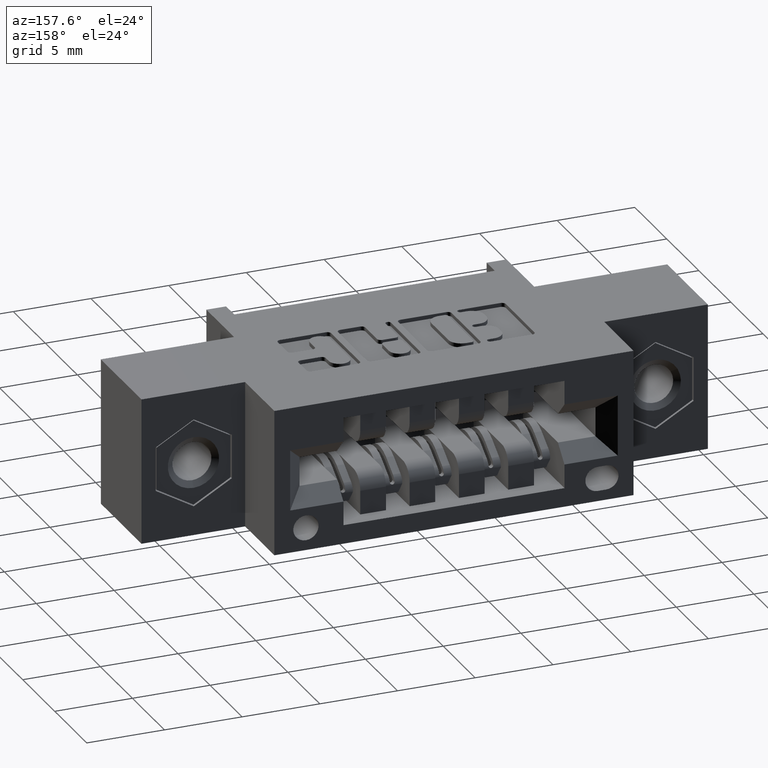
[diagram: clean part render]
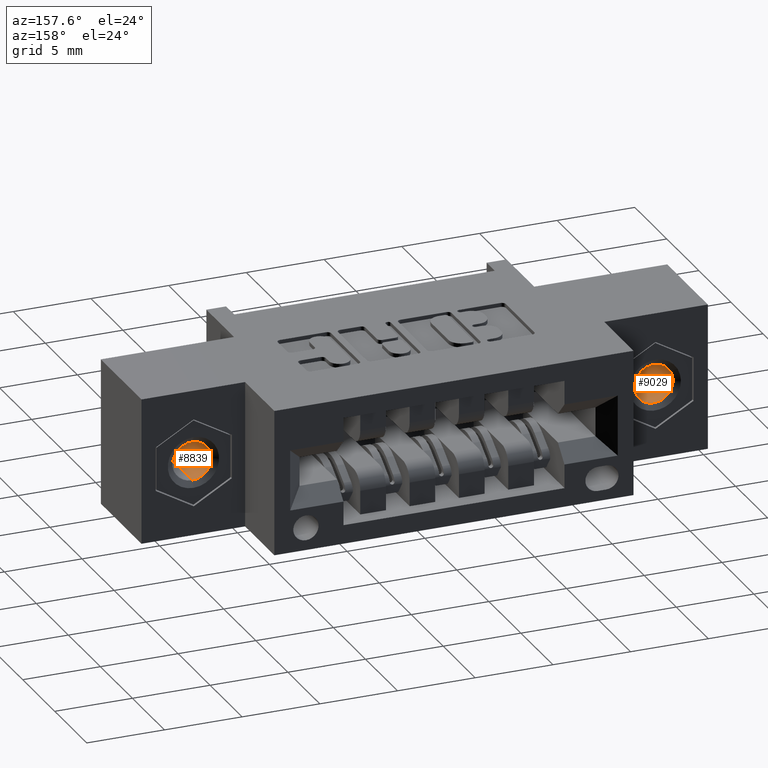
[diagram: same view with one multi-face feature highlighted, each face labeled with its STEP entity id]
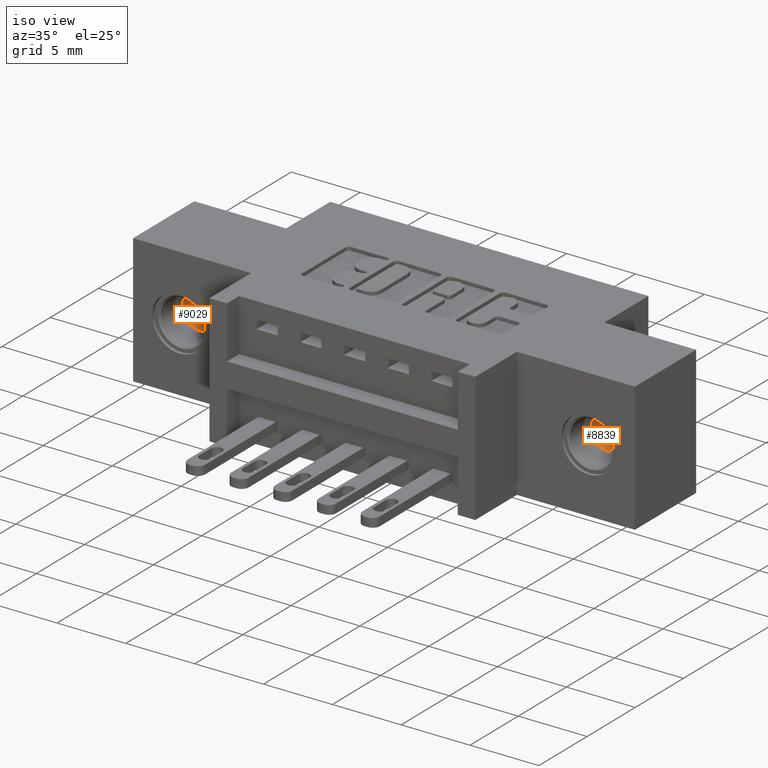
[diagram: same view with one multi-face feature highlighted, each face labeled with its STEP entity id]
A machine part, auxiliary view. The highlighted faces form ONE feature: a constant-radius fillet chain: 2 tangent blend faces with common blend radius 1.25 mm. The faces share edges in the B-rep.
A second angle (iso view) of the same feature is appended — it is thin or edge-on in the first view.
Their STEP definitions:
[1] entity #9029 (Cylinder):
#285 = DIRECTION ( 'NONE',  ( -0.0000000000000000000, -1.000000000000000000, -0.0000000000000000000 ) ) ;
#318 = AXIS2_PLACEMENT_3D ( 'NONE', #5926, #285, #5211 ) ;
#335 = CARTESIAN_POINT ( 'NONE',  ( 2.310085507431578067E-17, 0.0000000000000000000, 0.04921259842519700584 ) ) ;
#345 = VERTEX_POINT ( 'NONE', #1471 ) ;
#479 = LINE ( 'NONE', #4699, #7061 ) ;
#737 = CYLINDRICAL_SURFACE ( 'NONE', #8356, 0.04921259842519680461 ) ;
#873 = DIRECTION ( 'NONE',  ( 0.0000000000000000000, 0.0000000000000000000, -1.000000000000000000 ) ) ;
#1461 = VERTEX_POINT ( 'NONE', #7031 ) ;
#1471 = CARTESIAN_POINT ( 'NONE',  ( 0.0000000000000000000, 0.1667125984251968396, 0.04921259842519680461 ) ) ;
#1770 = VERTEX_POINT ( 'NONE', #8242 ) ;
#2035 = VECTOR ( 'NONE', #5548, 39.37007874015748143 ) ;
#2098 = CARTESIAN_POINT ( 'NONE',  ( 1.707404996040164512E-17, 0.0000000000000000000, 2.048885995248197414E-16 ) ) ;
#2204 = ORIENTED_EDGE ( 'NONE', *, *, #7937, .T. ) ;
#2740 = CIRCLE ( 'NONE', #4563, 0.04921259842519661032 ) ;
#2905 = DIRECTION ( 'NONE',  ( 0.0000000000000000000, 0.0000000000000000000, -1.000000000000000000 ) ) ;
#4077 = LINE ( 'NONE', #335, #2035 ) ;
#4157 = EDGE_CURVE ( 'NONE', #345, #5759, #4077, .T. ) ;
#4563 = AXIS2_PLACEMENT_3D ( 'NONE', #8966, #7460, #873 ) ;
#4591 = ORIENTED_EDGE ( 'NONE', *, *, #4157, .T. ) ;
#4699 = CARTESIAN_POINT ( 'NONE',  ( 1.707404996040164512E-17, 0.0000000000000000000, -0.04921259842519659644 ) ) ;
#4860 = FACE_OUTER_BOUND ( 'NONE', #5892, .T. ) ;
#5211 = DIRECTION ( 'NONE',  ( 0.0000000000000000000, 0.0000000000000000000, 1.000000000000000000 ) ) ;
#5385 = EDGE_CURVE ( 'NONE', #1461, #1770, #479, .T. ) ;
#5548 = DIRECTION ( 'NONE',  ( 0.0000000000000000000, -1.000000000000000000, 0.0000000000000000000 ) ) ;
#5759 = VERTEX_POINT ( 'NONE', #7437 ) ;
#5813 = DIRECTION ( 'NONE',  ( 0.0000000000000000000, -1.000000000000000000, 0.0000000000000000000 ) ) ;
#5892 = EDGE_LOOP ( 'NONE', ( #7549, #4591, #2204, #9207 ) ) ;
#5926 = CARTESIAN_POINT ( 'NONE',  ( 0.0000000000000000000, 0.1667125984251968396, 0.0000000000000000000 ) ) ;
#7012 = EDGE_CURVE ( 'NONE', #345, #1461, #7428, .T. ) ;
#7031 = CARTESIAN_POINT ( 'NONE',  ( 6.714882044273396889E-18, 0.1667125984251968396, -0.04921259842519675604 ) ) ;
#7061 = VECTOR ( 'NONE', #9091, 39.37007874015748143 ) ;
#7428 = CIRCLE ( 'NONE', #318, 0.04921259842519680461 ) ;
#7437 = CARTESIAN_POINT ( 'NONE',  ( 2.310085507431576526E-17, 0.009114860549017462371, 0.04921259842519677685 ) ) ;
#7460 = DIRECTION ( 'NONE',  ( 0.0000000000000000000, -1.000000000000000000, 0.0000000000000000000 ) ) ;
#7549 = ORIENTED_EDGE ( 'NONE', *, *, #7012, .F. ) ;
#7937 = EDGE_CURVE ( 'NONE', #5759, #1770, #2740, .T. ) ;
#8242 = CARTESIAN_POINT ( 'NONE',  ( 1.707404996040164512E-17, 0.009114860549017462371, -0.04921259842519640909 ) ) ;
#8356 = AXIS2_PLACEMENT_3D ( 'NONE', #2098, #5813, #2905 ) ;
#8966 = CARTESIAN_POINT ( 'NONE',  ( 1.707404996040164512E-17, 0.009114860549017462371, 2.048885995248197414E-16 ) ) ;
#9029 = ADVANCED_FACE ( 'NONE', ( #4860 ), #737, .F. ) ;
#9091 = DIRECTION ( 'NONE',  ( 0.0000000000000000000, -1.000000000000000000, 0.0000000000000000000 ) ) ;
#9207 = ORIENTED_EDGE ( 'NONE', *, *, #5385, .F. ) ;
[2] entity #8839 (Cylinder):
#269 = DIRECTION ( 'NONE',  ( 0.0000000000000000000, 0.0000000000000000000, -1.000000000000000000 ) ) ;
#335 = CARTESIAN_POINT ( 'NONE',  ( 2.310085507431578067E-17, 0.0000000000000000000, 0.04921259842519700584 ) ) ;
#345 = VERTEX_POINT ( 'NONE', #1471 ) ;
#479 = LINE ( 'NONE', #4699, #7061 ) ;
#714 = CARTESIAN_POINT ( 'NONE',  ( 0.0000000000000000000, 0.1667125984251968396, 0.0000000000000000000 ) ) ;
#1072 = CARTESIAN_POINT ( 'NONE',  ( 1.707404996040164512E-17, 0.0000000000000000000, 2.048885995248197414E-16 ) ) ;
#1385 = AXIS2_PLACEMENT_3D ( 'NONE', #1072, #3251, #5341 ) ;
#1461 = VERTEX_POINT ( 'NONE', #7031 ) ;
#1471 = CARTESIAN_POINT ( 'NONE',  ( 0.0000000000000000000, 0.1667125984251968396, 0.04921259842519680461 ) ) ;
#1770 = VERTEX_POINT ( 'NONE', #8242 ) ;
#1777 = ORIENTED_EDGE ( 'NONE', *, *, #5385, .T. ) ;
#1814 = CIRCLE ( 'NONE', #7129, 0.04921259842519661032 ) ;
#2035 = VECTOR ( 'NONE', #5548, 39.37007874015748143 ) ;
#2457 = ORIENTED_EDGE ( 'NONE', *, *, #4157, .F. ) ;
#3251 = DIRECTION ( 'NONE',  ( 0.0000000000000000000, -1.000000000000000000, 0.0000000000000000000 ) ) ;
#3818 = CYLINDRICAL_SURFACE ( 'NONE', #1385, 0.04921259842519680461 ) ;
#3865 = CARTESIAN_POINT ( 'NONE',  ( 1.707404996040164512E-17, 0.009114860549017462371, 2.048885995248197414E-16 ) ) ;
#3946 = ORIENTED_EDGE ( 'NONE', *, *, #5526, .F. ) ;
#4077 = LINE ( 'NONE', #335, #2035 ) ;
#4157 = EDGE_CURVE ( 'NONE', #345, #5759, #4077, .T. ) ;
#4338 = CIRCLE ( 'NONE', #7516, 0.04921259842519680461 ) ;
#4401 = EDGE_LOOP ( 'NONE', ( #2457, #3946, #1777, #9063 ) ) ;
#4680 = FACE_OUTER_BOUND ( 'NONE', #4401, .T. ) ;
#4699 = CARTESIAN_POINT ( 'NONE',  ( 1.707404996040164512E-17, 0.0000000000000000000, -0.04921259842519659644 ) ) ;
#4934 = DIRECTION ( 'NONE',  ( 0.0000000000000000000, 0.0000000000000000000, 1.000000000000000000 ) ) ;
#5341 = DIRECTION ( 'NONE',  ( 0.0000000000000000000, 0.0000000000000000000, -1.000000000000000000 ) ) ;
#5385 = EDGE_CURVE ( 'NONE', #1461, #1770, #479, .T. ) ;
#5526 = EDGE_CURVE ( 'NONE', #1461, #345, #4338, .T. ) ;
#5548 = DIRECTION ( 'NONE',  ( 0.0000000000000000000, -1.000000000000000000, 0.0000000000000000000 ) ) ;
#5759 = VERTEX_POINT ( 'NONE', #7437 ) ;
#7031 = CARTESIAN_POINT ( 'NONE',  ( 6.714882044273396889E-18, 0.1667125984251968396, -0.04921259842519675604 ) ) ;
#7061 = VECTOR ( 'NONE', #9091, 39.37007874015748143 ) ;
#7129 = AXIS2_PLACEMENT_3D ( 'NONE', #3865, #8175, #269 ) ;
#7351 = EDGE_CURVE ( 'NONE', #1770, #5759, #1814, .T. ) ;
#7437 = CARTESIAN_POINT ( 'NONE',  ( 2.310085507431576526E-17, 0.009114860549017462371, 0.04921259842519677685 ) ) ;
#7516 = AXIS2_PLACEMENT_3D ( 'NONE', #714, #7857, #4934 ) ;
#7857 = DIRECTION ( 'NONE',  ( -0.0000000000000000000, -1.000000000000000000, -0.0000000000000000000 ) ) ;
#8175 = DIRECTION ( 'NONE',  ( 0.0000000000000000000, -1.000000000000000000, 0.0000000000000000000 ) ) ;
#8242 = CARTESIAN_POINT ( 'NONE',  ( 1.707404996040164512E-17, 0.009114860549017462371, -0.04921259842519640909 ) ) ;
#8839 = ADVANCED_FACE ( 'NONE', ( #4680 ), #3818, .F. ) ;
#9063 = ORIENTED_EDGE ( 'NONE', *, *, #7351, .T. ) ;
#9091 = DIRECTION ( 'NONE',  ( 0.0000000000000000000, -1.000000000000000000, 0.0000000000000000000 ) ) ;